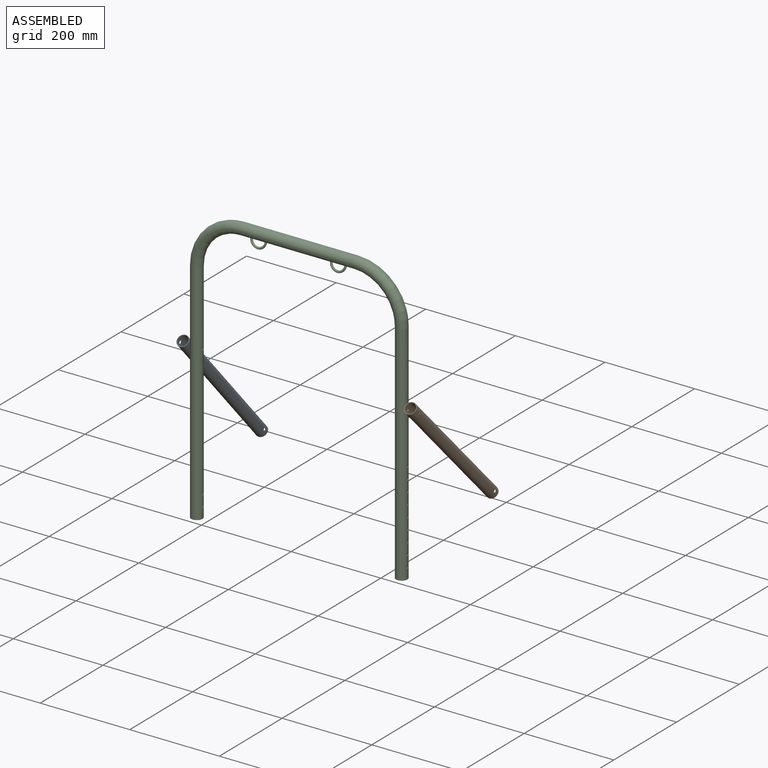
[diagram: assembled view]
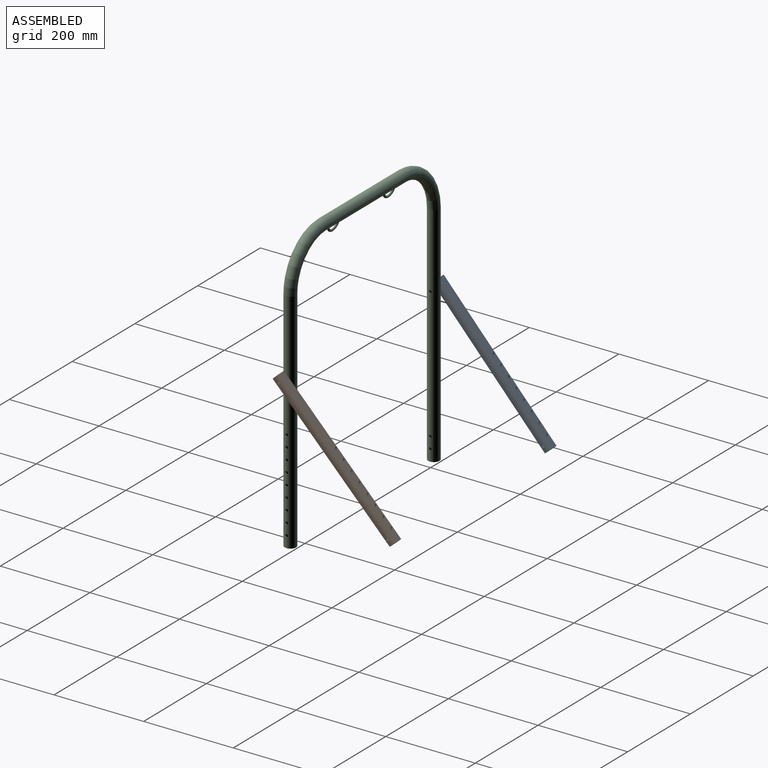
[diagram: assembled view, second angle]
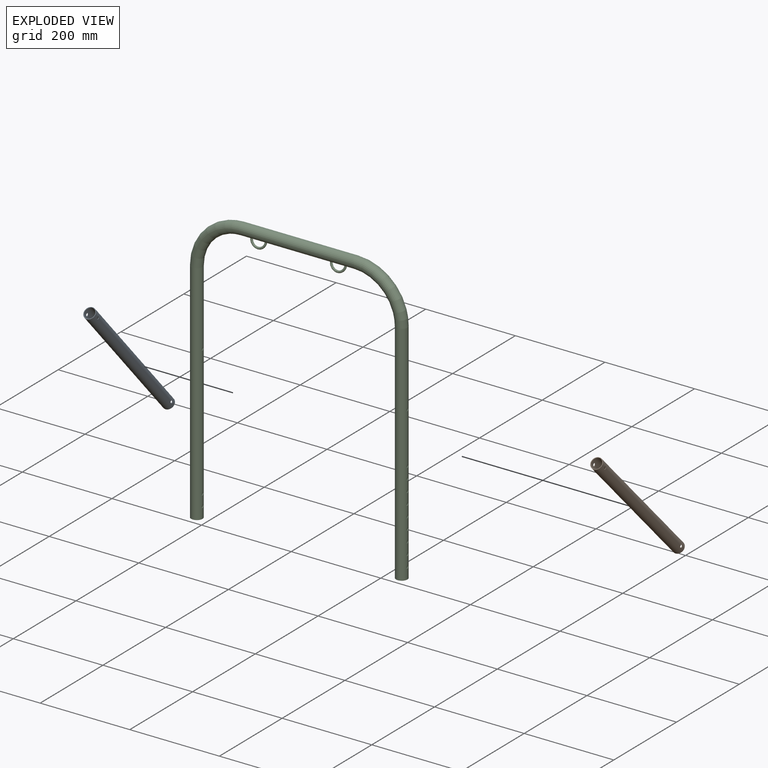
[diagram: exploded view]
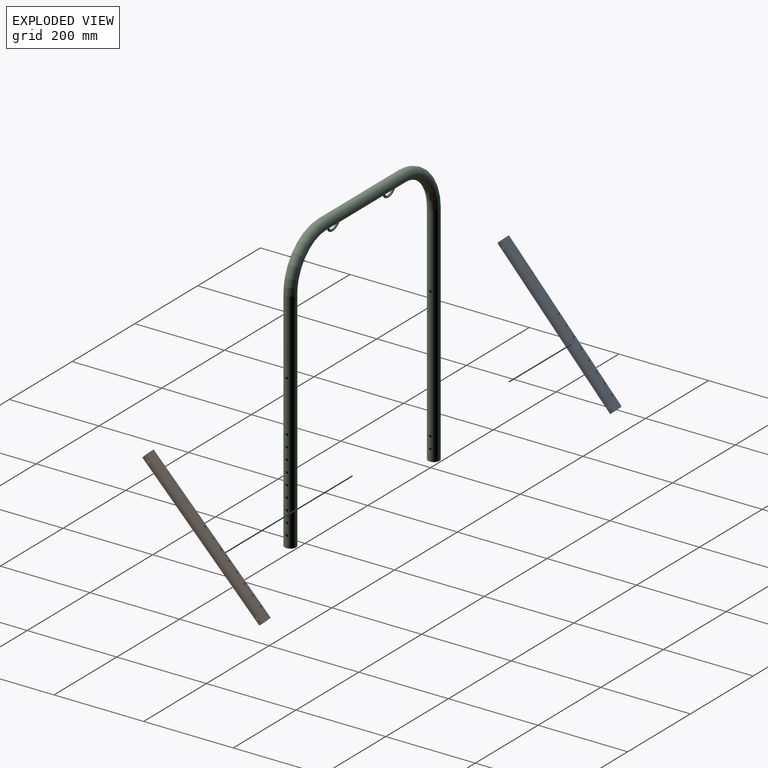
[diagram: exploded view, second angle]
ASSEMBLY  parts=3 mates=2
PART A: 16 faces, bbox 25.4x25.4x374.7 mm
  f0: cylinder r=3.17mm len=6.35mm, axis (-1,0,0), area 25.8mm2, adj f2,f7
  f1: cylinder r=3.17mm len=6.35mm, axis (-1,0,0), area 25.8mm2, adj f2,f7
  f2: cylinder r=12.7mm len=374.65mm, axis (0,0,-1), area 29511.9mm2, adj f0,f1,f3,f4,f5,f6,f8,f9
  f3: plane 25.4x25.4mm, normal (0,0,1), area 96.3mm2, adj f2,f7
  f4: plane 25.4x25.4mm, normal (0,0,-1), area 96.3mm2, adj f2,f7
  f5: cylinder r=3.17mm len=6.35mm, axis (-1,0,0), area 25.8mm2, adj f2,f7
  f6: cylinder r=3.17mm len=6.35mm, axis (-1,0,0), area 25.8mm2, adj f2,f7
  f7: cylinder r=11.43mm len=374.65mm, axis (0,0,-1), area 26522.3mm2, adj f0,f1,f3,f4,f5,f6,f8,f9
  f8: cylinder r=3.17mm len=6.35mm, axis (0,-1,0), area 25.8mm2, adj f2,f7
  f9: cylinder r=3.17mm len=6.35mm, axis (0,-1,0), area 25.8mm2, adj f2,f7
  f10: cylinder r=3.17mm len=6.35mm, axis (0,-1,0), area 25.8mm2, adj f2,f7
  f11: cylinder r=3.17mm len=6.35mm, axis (0,-1,0), area 25.8mm2, adj f2,f7
  f12: cylinder r=3.17mm len=6.35mm, axis (0,-1,0), area 25.8mm2, adj f2,f7
  f13: cylinder r=3.17mm len=6.35mm, axis (0,-1,0), area 25.8mm2, adj f2,f7
  f14: cylinder r=3.17mm len=6.35mm, axis (0,-1,0), area 25.8mm2, adj f2,f7
  f15: cylinder r=3.17mm len=6.35mm, axis (0,-1,0), area 25.8mm2, adj f2,f7
PART B: same geometry as A
PART C: 39 faces, bbox 501.4x25.4x631.7 mm
  f0: cylinder r=12.7mm len=508mm, axis (0,0,1), area 40121.1mm2, adj f2,f3,f5,f6,f8,f9,f15,f16
  f1: cylinder r=11.43mm len=508mm, axis (0,0,-1), area 36066.9mm2, adj f2,f3,f5,f6,f8,f9,f15,f24
  f2: cylinder r=3.17mm len=6.35mm, axis (1,0,0), area 25.3mm2, adj f0,f1
  f3: cylinder r=3.17mm len=6.35mm, axis (1,0,0), area 25.3mm2, adj f0,f1
  f4: cylinder r=3.17mm len=6.35mm, axis (1,0,0), area 25.3mm2, adj f12,f22
  f5: cylinder r=3.17mm len=6.35mm, axis (-1,0,0), area 25.3mm2, adj f0,f1
  f6: cylinder r=3.17mm len=6.35mm, axis (-1,0,0), area 25.3mm2, adj f0,f1
  f7: cylinder r=3.17mm len=6.35mm, axis (-1,0,0), area 25.3mm2, adj f12,f22
  f8: cylinder r=3.17mm len=6.35mm, axis (-1,0,0), area 25.3mm2, adj f0,f1
  f9: cylinder r=3.17mm len=6.35mm, axis (-1,0,0), area 25.3mm2, adj f0,f1
  f10: cylinder r=3.17mm len=6.35mm, axis (-1,0,0), area 25.3mm2, adj f12,f22
  f11: cylinder r=12.7mm len=254mm, axis (1,0,0), area 20187.8mm2, adj f14,f16,f20,f21
  f12: cylinder r=12.7mm len=508mm, axis (0,0,1), area 40121.1mm2, adj f4,f7,f10,f13,f14,f17,f18,f19
  f13: plane 25.4x25.4mm, normal (0,0,-1), area 96.3mm2, adj f12,f22
  f14: torus R=101.6mm, axis (0,1,0), area 12734.9mm2, adj f11,f12
  f15: plane 25.4x25.4mm, normal (0,0,-1), area 96.3mm2, adj f0,f1
  f16: torus R=101.6mm, axis (0,1,0), area 12734.9mm2, adj f0,f11
  f17: cylinder r=3.17mm len=6.35mm, axis (1,0,0), area 25.3mm2, adj f12,f22
  f18: cylinder r=3.17mm len=6.35mm, axis (-1,0,0), area 25.3mm2, adj f12,f22
  f19: cylinder r=3.17mm len=6.35mm, axis (-1,0,0), area 25.3mm2, adj f12,f22
  f20: bspline ~37.25x18.56mm, area 773.1mm2, adj f11
  f21: bspline ~37.23x18.55mm, area 772.8mm2, adj f11
  f22: cylinder r=11.43mm len=508mm, axis (0,0,-1), area 36066.6mm2, adj f4,f7,f10,f13,f17,f18,f19,f23
  f23: plane 22.86x22.86mm, normal (0,0,-1), area 410.4mm2, adj f22
  f24: plane 22.86x22.86mm, normal (0,0,-1), area 410.4mm2, adj f1
  f25: cylinder r=3.17mm len=6.35mm, axis (-1,0,0), area 25.3mm2, adj f0,f1
  f26: cylinder r=3.17mm len=6.35mm, axis (-1,0,0), area 25.3mm2, adj f0,f1
  f27: cylinder r=3.17mm len=6.35mm, axis (-1,0,0), area 25.3mm2, adj f0,f1
  f28: cylinder r=3.17mm len=6.35mm, axis (-1,0,0), area 25.3mm2, adj f0,f1
  f29: cylinder r=3.17mm len=6.35mm, axis (-1,0,0), area 25.3mm2, adj f0,f1
  f30: cylinder r=3.17mm len=6.35mm, axis (-1,0,0), area 25.3mm2, adj f0,f1
  f31: cylinder r=3.17mm len=6.35mm, axis (-1,0,0), area 25.3mm2, adj f0,f1
  f32: cylinder r=3.17mm len=6.35mm, axis (1,0,0), area 25.3mm2, adj f12,f22
  f33: cylinder r=3.17mm len=6.35mm, axis (1,0,0), area 25.3mm2, adj f12,f22
  f34: cylinder r=3.17mm len=6.35mm, axis (1,0,0), area 25.3mm2, adj f12,f22
  f35: cylinder r=3.17mm len=6.35mm, axis (1,0,0), area 25.3mm2, adj f12,f22
  f36: cylinder r=3.17mm len=6.35mm, axis (1,0,0), area 25.3mm2, adj f12,f22
  f37: cylinder r=3.17mm len=6.35mm, axis (1,0,0), area 25.3mm2, adj f12,f22
  f38: cylinder r=3.17mm len=6.35mm, axis (1,0,0), area 25.3mm2, adj f12,f22
PLACE A rot(axis=(1,0,0),42.2deg) t=(-235.92,242.97,-283.88)mm
PLACE B rot(axis=(1,0,0),44.1deg) t=(272.14,252.07,-275.36)mm
PLACE C t=(18.11,0.03,-358.47)mm
MATE revolute C.f5 <-> B.f1  axis (-1,0,0) through (259.43,0.03,-15.57)mm
MATE revolute A.f1 <-> C.f5  axis (-1,0,0) through (-223.2,0.03,-15.57)mm
